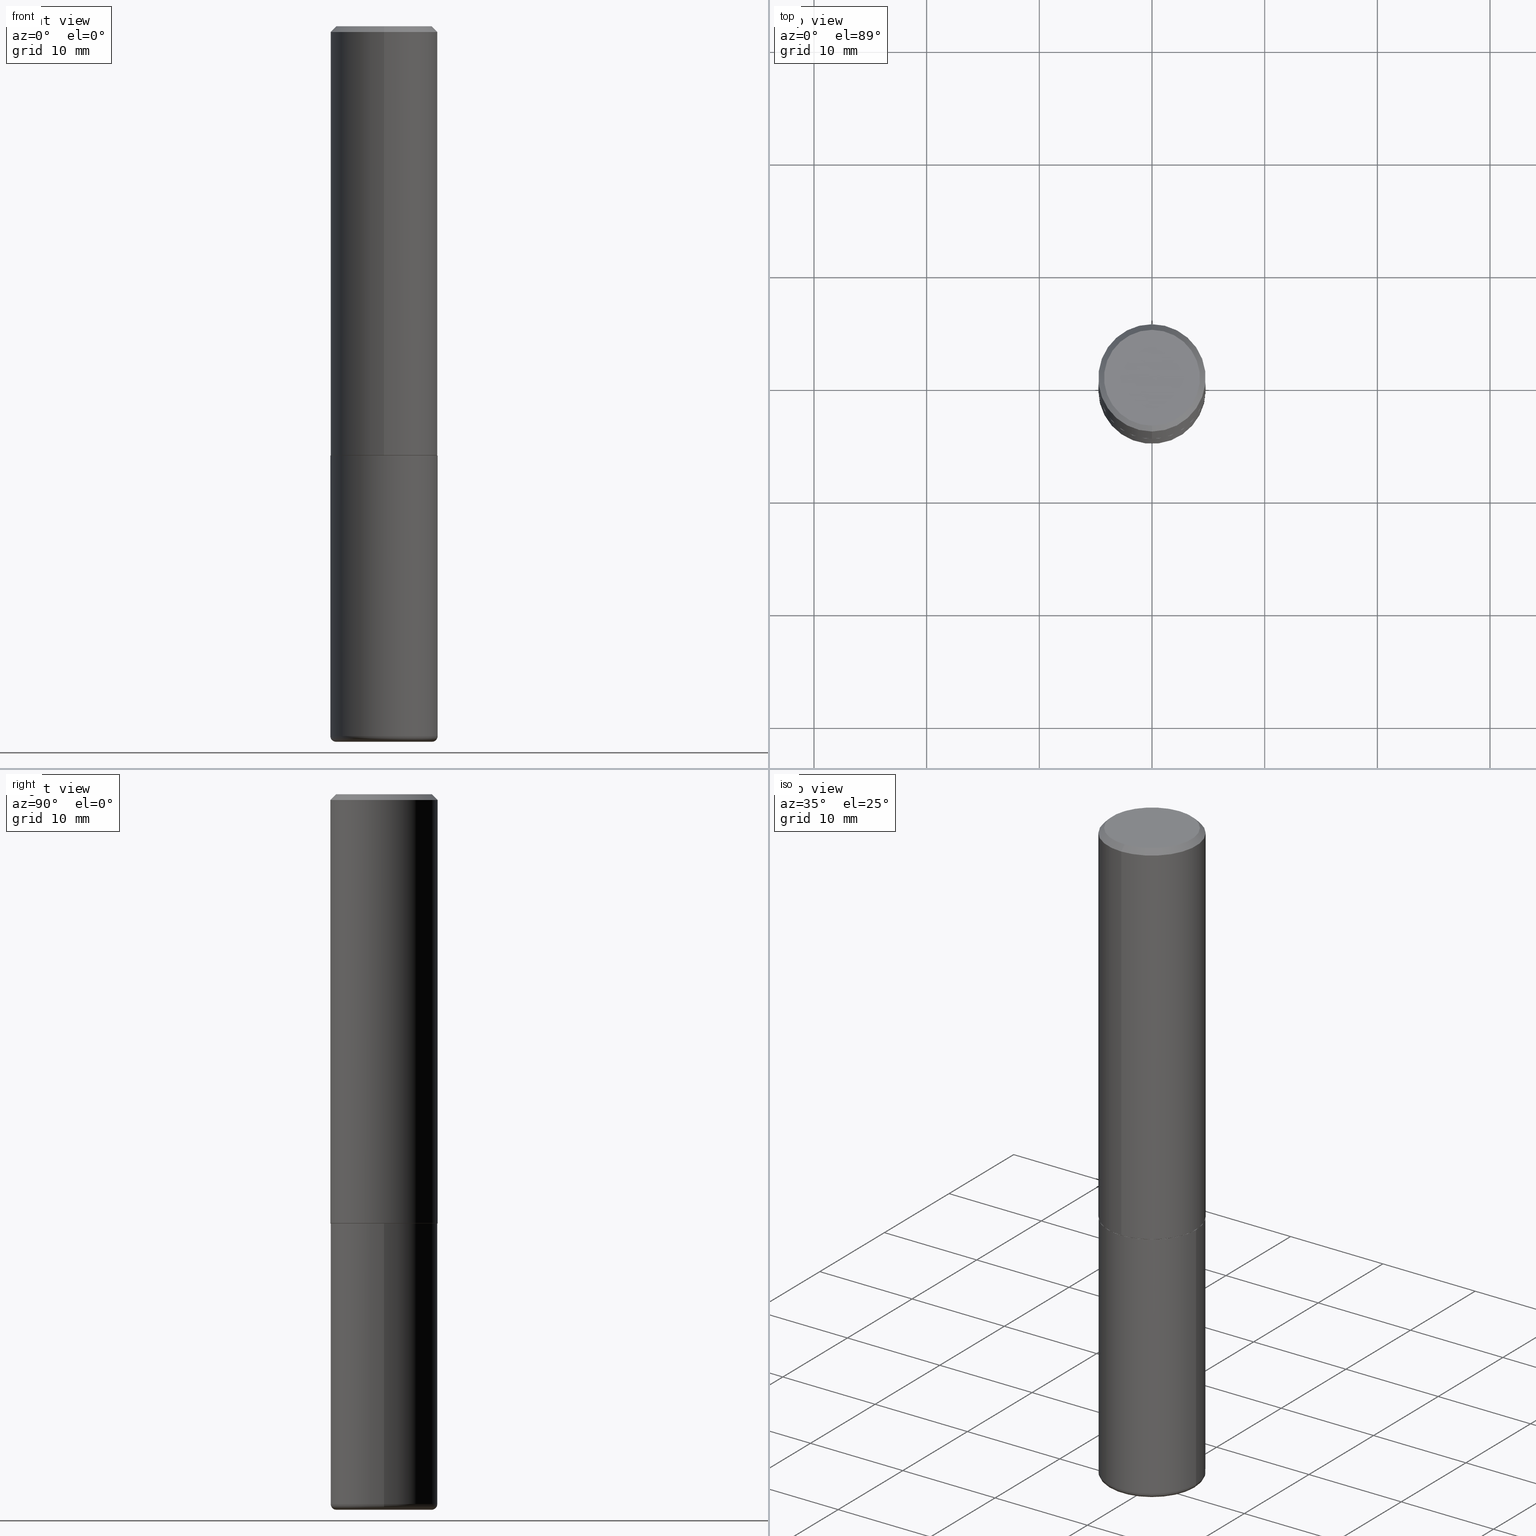
[diagram: canonical four-view strip — front | top / right | iso, engineering-drawing reading convention]
A machine part, canonical four-view strip (front | top / right | iso — engineering-drawing reading convention). The complete STEP part file that produces these views, byte-faithful:
ISO-10303-21;
HEADER;
FILE_DESCRIPTION (( 'STEP AP203' ),
    '1' );
FILE_NAME ('38248.STEP',
    '2024-03-02T19:32:34',
    ( '' ),
    ( '' ),
    'SwSTEP 2.0',
    'SolidWorks 2023',
    '' );
FILE_SCHEMA (( 'CONFIG_CONTROL_DESIGN' ));
ENDSEC;

DATA;
#1 = CALENDAR_DATE ( 2024, 2, 3 ) ;
#2 = EDGE_CURVE ( 'NONE', #370, #78, #31, .T. ) ;
#3 = AXIS2_PLACEMENT_3D ( 'NONE', #240, #142, #248 ) ;
#4 = CARTESIAN_POINT ( 'NONE',  ( 1.169646248512449595E-15, 0.1675000000000000100, -5.997178120976420969E-16 ) ) ;
#5 = ORIENTED_EDGE ( 'NONE', *, *, #358, .F. ) ;
#6 = DIRECTION ( 'NONE',  ( 1.000000000000000000, -6.982962677686261189E-15, 0.000000000000000000 ) ) ;
#7 = EDGE_LOOP ( 'NONE', ( #216, #330, #20, #310 ) ) ;
#8 = CARTESIAN_POINT ( 'NONE',  ( 0.000000000000000000, 0.000000000000000000, 0.000000000000000000 ) ) ;
#9 = ORGANIZATION ( 'UNSPECIFIED', 'UNSPECIFIED', '' ) ;
#10 = DIRECTION ( 'NONE',  ( 2.438088387897960049E-29, -3.491481338843145188E-15, -1.000000000000000000 ) ) ;
#11 = EDGE_CURVE ( 'NONE', #59, #312, #44, .T. ) ;
#12 = DIRECTION ( 'NONE',  ( 1.000000000000000000, -6.982962677686266711E-15, 4.883557194083113462E-29 ) ) ;
#13 = ORIENTED_EDGE ( 'NONE', *, *, #120, .T. ) ;
#14 = CIRCLE ( 'NONE', #3, 0.1875000000000000278 ) ;
#15 = CC_DESIGN_APPROVAL ( #391, ( #85 ) ) ;
#16 = LINE ( 'NONE', #54, #80 ) ;
#17 = DIRECTION ( 'NONE',  ( -6.982962677686265922E-15, -1.000000000000000000, 3.490942761243906817E-15 ) ) ;
#18 = DIRECTION ( 'NONE',  ( 1.000000000000000000, -6.982962677686275388E-15, 0.000000000000000000 ) ) ;
#19 = ADVANCED_FACE ( 'NONE', ( #157 ), #68, .T. ) ;
#20 = ORIENTED_EDGE ( 'NONE', *, *, #94, .T. ) ;
#21 = DIRECTION ( 'NONE',  ( -2.445468806185136597E-29, 3.491481338843145583E-15, 1.000000000000000000 ) ) ;
#22 = ORIENTED_EDGE ( 'NONE', *, *, #381, .T. ) ;
#23 = CIRCLE ( 'NONE', #237, 0.1875000000000001943 ) ;
#24 = PERSON_AND_ORGANIZATION ( #335, #9 ) ;
#25 = ORIENTED_EDGE ( 'NONE', *, *, #196, .F. ) ;
#26 = EDGE_CURVE ( 'NONE', #78, #372, #66, .T. ) ;
#27 = PERSON_AND_ORGANIZATION_ROLE ( 'design_owner' ) ;
#28 = CARTESIAN_POINT ( 'NONE',  ( 4.891689785825187560E-31, -6.981885522487828820E-17, -0.02000000000000004205 ) ) ;
#29 = PERSON_AND_ORGANIZATION ( #335, #9 ) ;
#30 = SECURITY_CLASSIFICATION_LEVEL ( 'unclassified' ) ;
#31 = CIRCLE ( 'NONE', #97, 0.1675000000000000100 ) ;
#32 = CARTESIAN_POINT ( 'NONE',  ( 3.666321494475970828E-29, -5.232923199104616895E-15, -1.499000000000000110 ) ) ;
#33 = AXIS2_PLACEMENT_3D ( 'NONE', #179, #172, #364 ) ;
#34 = DESIGN_CONTEXT ( 'detailed design', #123, 'design' ) ;
#35 = CARTESIAN_POINT ( 'NONE',  ( -1.309305502066139509E-15, -0.1875000000000054123, -1.498999999999999444 ) ) ;
#36 = CARTESIAN_POINT ( 'NONE',  ( -1.286343374582161379E-15, -0.1875000000000000555, -0.01999999999999938979 ) ) ;
#37 = CIRCLE ( 'NONE', #79, 0.1864999999999999714 ) ;
#38 = VERTEX_POINT ( 'NONE', #410 ) ;
#39 = AXIS2_PLACEMENT_3D ( 'NONE', #244, #340, #303 ) ;
#40 = LINE ( 'NONE', #394, #328 ) ;
#41 = ORIENTED_EDGE ( 'NONE', *, *, #214, .F. ) ;
#42 = DIRECTION ( 'NONE',  ( 4.937700262164540942E-15, 0.7071067811865441310, -0.7071067811865509034 ) ) ;
#43 = CARTESIAN_POINT ( 'NONE',  ( -0.1875000000000000278, 1.332267629550188046E-15, -9.223003294227947991E-30 ) ) ;
#44 = CIRCLE ( 'NONE', #416, 0.1675000000000000100 ) ;
#45 = CIRCLE ( 'NONE', #99, 0.02000000000000016348 ) ;
#46 = DIRECTION ( 'NONE',  ( 5.024295867787719235E-15, 0.7071067811865017205, 0.7071067811865933139 ) ) ;
#47 = ORIENTED_EDGE ( 'NONE', *, *, #120, .F. ) ;
#48 = DIRECTION ( 'NONE',  ( -1.000000000000000000, 6.982962677686265922E-15, -4.876176775795935793E-29 ) ) ;
#49 = ORIENTED_EDGE ( 'NONE', *, *, #206, .T. ) ;
#50 = CARTESIAN_POINT ( 'NONE',  ( 0.1875000000000001110, -9.968179222397176653E-15, -2.480000000000000426 ) ) ;
#51 = ORIENTED_EDGE ( 'NONE', *, *, #277, .T. ) ;
#52 = VECTOR ( 'NONE', #267, 39.37007874015748143 ) ;
#53 = EDGE_CURVE ( 'NONE', #151, #406, #23, .T. ) ;
#54 = CARTESIAN_POINT ( 'NONE',  ( -1.302322539388451720E-15, -0.1865000000000051894, -1.499999999999999778 ) ) ;
#55 = ORIENTED_EDGE ( 'NONE', *, *, #60, .T. ) ;
#56 = CARTESIAN_POINT ( 'NONE',  ( 6.064762639339139522E-29, -8.658873720331001644E-15, -2.480000000000000426 ) ) ;
#57 = ORIENTED_EDGE ( 'NONE', *, *, #11, .F. ) ;
#58 = DATE_TIME_ROLE ( 'creation_date' ) ;
#59 = VERTEX_POINT ( 'NONE', #194 ) ;
#60 = EDGE_CURVE ( 'NONE', #342, #38, #223, .T. ) ;
#61 = CLOSED_SHELL ( 'NONE', ( #412, #351, #306, #228, #366, #143 ) ) ;
#62 = CARTESIAN_POINT ( 'NONE',  ( 0.000000000000000000, 0.000000000000000000, 0.000000000000000000 ) ) ;
#63 = DIRECTION ( 'NONE',  ( -6.982962677686265922E-15, -1.000000000000000000, 2.913971193241877611E-15 ) ) ;
#64 = APPROVAL_STATUS ( 'not_yet_approved' ) ;
#65 = DIRECTION ( 'NONE',  ( -6.982962677686265922E-15, -1.000000000000000000, 2.929595703661408850E-15 ) ) ;
#66 = LINE ( 'NONE', #36, #254 ) ;
#67 = PERSON_AND_ORGANIZATION ( #335, #9 ) ;
#68 = CONICAL_SURFACE ( 'NONE', #198, 0.1874999999999999722, 0.7853981633974469467 ) ;
#69 = FACE_OUTER_BOUND ( 'NONE', #7, .T. ) ;
#70 = DIRECTION ( 'NONE',  ( -2.445844892912588876E-29, 3.490942761243906817E-15, 1.000000000000000000 ) ) ;
#71 = CARTESIAN_POINT ( 'NONE',  ( 3.668767339368883594E-29, -5.236414141865861409E-15, -1.500000000000000444 ) ) ;
#72 = ADVANCED_FACE ( 'NONE', ( #69 ), #166, .T. ) ;
#73 = CARTESIAN_POINT ( 'NONE',  ( 1.328714915871423829E-15, 0.1864999999999947533, -1.500000000000000888 ) ) ;
#74 = AXIS2_PLACEMENT_3D ( 'NONE', #28, #127, #257 ) ;
#75 = LOCAL_TIME ( 14, 32, 34.00000000000000000, #354 ) ;
#76 = PLANE ( 'NONE',  #359 ) ;
#77 = EDGE_CURVE ( 'NONE', #402, #239, #261, .T. ) ;
#78 = VERTEX_POINT ( 'NONE', #195 ) ;
#79 = AXIS2_PLACEMENT_3D ( 'NONE', #413, #355, #258 ) ;
#80 = VECTOR ( 'NONE', #215, 39.37007874015748143 ) ;
#81 = DIRECTION ( 'NONE',  ( -2.445468806185136597E-29, 3.491481338843145583E-15, 1.000000000000000000 ) ) ;
#82 = ORIENTED_EDGE ( 'NONE', *, *, #53, .T. ) ;
#83 = CARTESIAN_POINT ( 'NONE',  ( 0.1675000000000000100, -9.898349595620316510E-15, -2.500000000000000444 ) ) ;
#84 = ORIENTED_EDGE ( 'NONE', *, *, #77, .F. ) ;
#85 = PRODUCT_DEFINITION ( 'UNKNOWN', '', #231, #34 ) ;
#86 = DIRECTION ( 'NONE',  ( -1.000000000000000000, 7.105427357601014480E-15, 0.000000000000000000 ) ) ;
#87 = ORIENTED_EDGE ( 'NONE', *, *, #206, .F. ) ;
#88 = CC_DESIGN_DATE_AND_TIME_ASSIGNMENT ( #411, #58, ( #85 ) ) ;
#89 = CC_DESIGN_APPROVAL ( #383, ( #297 ) ) ;
#90 = DIRECTION ( 'NONE',  ( -2.445468806185136597E-29, 3.491481338843145583E-15, 1.000000000000000000 ) ) ;
#91 = ORIENTED_EDGE ( 'NONE', *, *, #77, .T. ) ;
#92 = DIRECTION ( 'NONE',  ( -6.982962677686266711E-15, -1.000000000000000000, 3.491481338843145583E-15 ) ) ;
#93 = EDGE_LOOP ( 'NONE', ( #82, #368, #408, #173 ) ) ;
#94 = EDGE_CURVE ( 'NONE', #372, #119, #246, .T. ) ;
#95 = CALENDAR_DATE ( 2024, 2, 3 ) ;
#96 = DIRECTION ( 'NONE',  ( -6.982962677686266711E-15, -1.000000000000000000, 3.490942761243906423E-15 ) ) ;
#97 = AXIS2_PLACEMENT_3D ( 'NONE', #243, #309, #17 ) ;
#98 = APPROVAL_ROLE ( '' ) ;
#99 = AXIS2_PLACEMENT_3D ( 'NONE', #336, #92, #18 ) ;
#100 = CARTESIAN_POINT ( 'NONE',  ( 0.1875000000000000278, -1.309305502066175008E-15, 9.142831454617381013E-30 ) ) ;
#101 = APPROVAL_STATUS ( 'not_yet_approved' ) ;
#102 = LINE ( 'NONE', #100, #283 ) ;
#103 = ORIENTED_EDGE ( 'NONE', *, *, #187, .T. ) ;
#104 = DIRECTION ( 'NONE',  ( 0.000000000000000000, 0.000000000000000000, 1.000000000000000000 ) ) ;
#105 = CARTESIAN_POINT ( 'NONE',  ( 6.064762639339139522E-29, -8.658873720331001644E-15, -2.480000000000000426 ) ) ;
#106 = ADVANCED_FACE ( 'NONE', ( #417 ), #290, .T. ) ;
#107 = DIRECTION ( 'NONE',  ( 6.982962677686265922E-15, 1.000000000000000000, -3.490942761243906423E-15 ) ) ;
#108 = DIMENSIONAL_EXPONENTS ( 1.000000000000000000, 0.000000000000000000, 0.000000000000000000, 0.000000000000000000, 0.000000000000000000, 0.000000000000000000, 0.000000000000000000 ) ;
#109 = EDGE_LOOP ( 'NONE', ( #41, #49, #103, #152 ) ) ;
#110 = CIRCLE ( 'NONE', #130, 0.1875000000000000278 ) ;
#111 = CYLINDRICAL_SURFACE ( 'NONE', #148, 0.1875000000000000278 ) ;
#112 = FACE_OUTER_BOUND ( 'NONE', #109, .T. ) ;
#113 = EDGE_LOOP ( 'NONE', ( #51, #126, #84, #5 ) ) ;
#114 = PRODUCT_RELATED_PRODUCT_CATEGORY ( 'detail', '', ( #338 ) ) ;
#115 = DIRECTION ( 'NONE',  ( -6.982962677686265922E-15, -1.000000000000000000, 3.490942761243906817E-15 ) ) ;
#116 = ORIENTED_EDGE ( 'NONE', *, *, #222, .T. ) ;
#117 = DIRECTION ( 'NONE',  ( -2.445844892912588876E-29, 3.490942761243906817E-15, 1.000000000000000000 ) ) ;
#118 = CC_DESIGN_PERSON_AND_ORGANIZATION_ASSIGNMENT ( #316, #27, ( #338 ) ) ;
#119 = VERTEX_POINT ( 'NONE', #387 ) ;
#120 = EDGE_CURVE ( 'NONE', #241, #282, #37, .T. ) ;
#121 = CARTESIAN_POINT ( 'NONE',  ( 4.891689785825187560E-31, -6.981885522487828820E-17, -0.02000000000000004205 ) ) ;
#122 = PLANE ( 'NONE',  #39 ) ;
#123 = APPLICATION_CONTEXT ( 'configuration controlled 3d designs of mechanical parts and assemblies' ) ;
#124 = AXIS2_PLACEMENT_3D ( 'NONE', #186, #287, #229 ) ;
#125 = CARTESIAN_POINT ( 'NONE',  ( 1.239475875289312499E-15, 0.1675000000000000100, -6.147027116869298551E-16 ) ) ;
#126 = ORIENTED_EDGE ( 'NONE', *, *, #388, .T. ) ;
#127 = DIRECTION ( 'NONE',  ( -2.445844892912588876E-29, 3.490942761243906817E-15, 1.000000000000000000 ) ) ;
#128 = APPROVAL_DATE_TIME ( #227, #301 ) ;
#129 = PLANE ( 'NONE',  #399 ) ;
#130 = AXIS2_PLACEMENT_3D ( 'NONE', #189, #318, #6 ) ;
#131 =( CONVERSION_BASED_UNIT ( 'INCH', #135 ) LENGTH_UNIT ( ) NAMED_UNIT ( #108 ) );
#132 = DIRECTION ( 'NONE',  ( 2.438088387897960049E-29, -3.491481338843145188E-15, -1.000000000000000000 ) ) ;
#133 = PERSON_AND_ORGANIZATION ( #335, #9 ) ;
#134 = DIRECTION ( 'NONE',  ( -2.445468806185136597E-29, 3.491481338843145583E-15, 1.000000000000000000 ) ) ;
#135 = LENGTH_MEASURE_WITH_UNIT ( LENGTH_MEASURE( 0.02539999999999999897 ), #403 );
#136 = AXIS2_PLACEMENT_3D ( 'NONE', #105, #134, #353 ) ;
#137 = LOCAL_TIME ( 14, 32, 34.00000000000000000, #156 ) ;
#138 = CARTESIAN_POINT ( 'NONE',  ( 6.113672015462842613E-29, -8.728703347107866520E-15, -2.500000000000000444 ) ) ;
#139 = ORIENTED_EDGE ( 'NONE', *, *, #298, .F. ) ;
#140 = DIRECTION ( 'NONE',  ( 2.445844892912588876E-29, -3.490942761243906423E-15, -1.000000000000000000 ) ) ;
#141 = CC_DESIGN_PERSON_AND_ORGANIZATION_ASSIGNMENT ( #165, #418, ( #297 ) ) ;
#142 = DIRECTION ( 'NONE',  ( -2.445468806185136597E-29, 3.491481338843145583E-15, 1.000000000000000000 ) ) ;
#143 = ADVANCED_FACE ( 'NONE', ( #379 ), #129, .T. ) ;
#144 = CARTESIAN_POINT ( 'NONE',  ( 3.666321494475970828E-29, -5.232923199104616895E-15, -1.499000000000000110 ) ) ;
#145 = PRODUCT_DEFINITION_SHAPE ( 'NONE', 'NONE',  #85 ) ;
#146 = ORIENTED_EDGE ( 'NONE', *, *, #320, .T. ) ;
#147 = AXIS2_PLACEMENT_3D ( 'NONE', #71, #197, #326 ) ;
#148 = AXIS2_PLACEMENT_3D ( 'NONE', #8, #168, #234 ) ;
#149 = AXIS2_PLACEMENT_3D ( 'NONE', #371, #117, #115 ) ;
#150 = ORIENTED_EDGE ( 'NONE', *, *, #26, .F. ) ;
#151 = VERTEX_POINT ( 'NONE', #35 ) ;
#152 = ORIENTED_EDGE ( 'NONE', *, *, #60, .F. ) ;
#153 = ADVANCED_FACE ( 'NONE', ( #251 ), #317, .T. ) ;
#154 = CIRCLE ( 'NONE', #204, 0.1875000000000001943 ) ;
#155 = TOROIDAL_SURFACE ( 'NONE', #262, 0.1675000000000000100, 0.02000000000000016348 ) ;
#156 = COORDINATED_UNIVERSAL_TIME_OFFSET ( 5, 0, .BEHIND. ) ;
#157 = FACE_OUTER_BOUND ( 'NONE', #209, .T. ) ;
#158 = PERSON_AND_ORGANIZATION_ROLE ( 'creator' ) ;
#159 = LINE ( 'NONE', #382, #296 ) ;
#160 = CALENDAR_DATE ( 2024, 2, 3 ) ;
#161 = EDGE_CURVE ( 'NONE', #151, #372, #159, .T. ) ;
#162 = DIRECTION ( 'NONE',  ( 1.000000000000000000, -6.982962677686266711E-15, 0.000000000000000000 ) ) ;
#163 = AXIS2_PLACEMENT_3D ( 'NONE', #361, #357, #232 ) ;
#164 = DIRECTION ( 'NONE',  ( -2.445468806185136597E-29, 3.491481338843145583E-15, 1.000000000000000000 ) ) ;
#165 = PERSON_AND_ORGANIZATION ( #335, #9 ) ;
#166 = CONICAL_SURFACE ( 'NONE', #378, 0.1874999999999999722, 0.7853981633974469467 ) ;
#167 = CC_DESIGN_SECURITY_CLASSIFICATION ( #297, ( #231 ) ) ;
#168 = DIRECTION ( 'NONE',  ( -2.445468806185136597E-29, 3.491481338843145583E-15, 1.000000000000000000 ) ) ;
#169 = EDGE_LOOP ( 'NONE', ( #302, #245, #346, #182 ) ) ;
#170 = DIRECTION ( 'NONE',  ( -2.445468806185136597E-29, 3.491481338843145583E-15, 1.000000000000000000 ) ) ;
#171 = CONICAL_SURFACE ( 'NONE', #147, 0.1864999999999999714, 0.7853981633973801113 ) ;
#172 = DIRECTION ( 'NONE',  ( -2.445844892912588876E-29, 3.490942761243906817E-15, 1.000000000000000000 ) ) ;
#173 = ORIENTED_EDGE ( 'NONE', *, *, #161, .F. ) ;
#174 = PLANE ( 'NONE',  #284 ) ;
#175 = ORIENTED_EDGE ( 'NONE', *, *, #381, .F. ) ;
#176 = FACE_OUTER_BOUND ( 'NONE', #395, .T. ) ;
#177 = EDGE_LOOP ( 'NONE', ( #47, #25 ) ) ;
#178 = AXIS2_PLACEMENT_3D ( 'NONE', #138, #170, #263 ) ;
#179 = CARTESIAN_POINT ( 'NONE',  ( 3.668767339368883594E-29, -5.236414141865861409E-15, -1.500000000000000444 ) ) ;
#180 = DIRECTION ( 'NONE',  ( 6.982962677686266711E-15, 1.000000000000000000, -3.483106191921935949E-15 ) ) ;
#181 = CARTESIAN_POINT ( 'NONE',  ( -1.286343374582161379E-15, -0.1875000000000000555, -0.01999999999999938979 ) ) ;
#182 = ORIENTED_EDGE ( 'NONE', *, *, #236, .F. ) ;
#183 = ORIENTED_EDGE ( 'NONE', *, *, #196, .T. ) ;
#184 = CC_DESIGN_PERSON_AND_ORGANIZATION_ASSIGNMENT ( #225, #220, ( #231 ) ) ;
#185 = VECTOR ( 'NONE', #396, 39.37007874015748143 ) ;
#186 = CARTESIAN_POINT ( 'NONE',  ( 0.000000000000000000, 0.000000000000000000, 0.000000000000000000 ) ) ;
#187 = EDGE_CURVE ( 'NONE', #402, #38, #102, .T. ) ;
#188 = APPROVAL_DATE_TIME ( #345, #391 ) ;
#189 = CARTESIAN_POINT ( 'NONE',  ( 6.064762639339139522E-29, -8.658873720331001644E-15, -2.480000000000000426 ) ) ;
#190 = COORDINATED_UNIVERSAL_TIME_OFFSET ( 5, 0, .BEHIND. ) ;
#191 = AXIS2_PLACEMENT_3D ( 'NONE', #260, #164, #162 ) ;
#192 = TOROIDAL_SURFACE ( 'NONE', #275, 0.1675000000000000100, 0.02000000000000016348 ) ;
#193 = CALENDAR_DATE ( 2024, 2, 3 ) ;
#194 = CARTESIAN_POINT ( 'NONE',  ( -0.1675000000000000100, -7.432575177745255527E-15, -2.500000000000000444 ) ) ;
#195 = CARTESIAN_POINT ( 'NONE',  ( -1.217738394604446442E-15, -0.1675000000000000100, 5.547631133297791179E-16 ) ) ;
#196 = EDGE_CURVE ( 'NONE', #282, #241, #274, .T. ) ;
#197 = DIRECTION ( 'NONE',  ( -2.445844892912588876E-29, 3.490942761243906817E-15, 1.000000000000000000 ) ) ;
#198 = AXIS2_PLACEMENT_3D ( 'NONE', #121, #374, #180 ) ;
#199 = APPROVAL_PERSON_ORGANIZATION ( #29, #301, #377 ) ;
#200 = FACE_OUTER_BOUND ( 'NONE', #334, .T. ) ;
#201 = APPROVAL_PERSON_ORGANIZATION ( #67, #391, #98 ) ;
#202 = EDGE_LOOP ( 'NONE', ( #280, #314 ) ) ;
#203 = ORIENTED_EDGE ( 'NONE', *, *, #358, .T. ) ;
#204 = AXIS2_PLACEMENT_3D ( 'NONE', #144, #333, #281 ) ;
#205 = EDGE_LOOP ( 'NONE', ( #337, #55 ) ) ;
#206 = EDGE_CURVE ( 'NONE', #239, #402, #110, .T. ) ;
#207 = CARTESIAN_POINT ( 'NONE',  ( 1.325162202192623128E-15, 0.1864999999999947533, -1.500000000000000888 ) ) ;
#208 = MANIFOLD_SOLID_BREP ( 'Body-Move/Copy2[2]', #348 ) ;
#209 = EDGE_LOOP ( 'NONE', ( #150, #300, #116, #398 ) ) ;
#210 = CC_DESIGN_PERSON_AND_ORGANIZATION_ASSIGNMENT ( #24, #319, ( #231 ) ) ;
#211 = FACE_OUTER_BOUND ( 'NONE', #205, .T. ) ;
#212 = ORIENTED_EDGE ( 'NONE', *, *, #214, .T. ) ;
#213 = VECTOR ( 'NONE', #46, 39.37007874015748143 ) ;
#214 = EDGE_CURVE ( 'NONE', #239, #342, #392, .T. ) ;
#215 = DIRECTION ( 'NONE',  ( -4.937700262164211199E-15, -0.7071067811864968355, 0.7071067811865981989 ) ) ;
#216 = ORIENTED_EDGE ( 'NONE', *, *, #401, .F. ) ;
#217 = CARTESIAN_POINT ( 'NONE',  ( 3.668203209277704895E-29, -5.237222008264718177E-15, -1.500000000000000222 ) ) ;
#218 = CC_DESIGN_PERSON_AND_ORGANIZATION_ASSIGNMENT ( #133, #158, ( #85 ) ) ;
#219 = ORIENTED_EDGE ( 'NONE', *, *, #53, .F. ) ;
#220 = PERSON_AND_ORGANIZATION_ROLE ( 'creator' ) ;
#221 = CARTESIAN_POINT ( 'NONE',  ( 3.668767339368883594E-29, -5.236414141865861409E-15, -1.500000000000000444 ) ) ;
#222 = EDGE_CURVE ( 'NONE', #370, #119, #40, .T. ) ;
#223 = CIRCLE ( 'NONE', #191, 0.1875000000000000278 ) ;
#224 = DIRECTION ( 'NONE',  ( -2.445468806185136877E-29, 3.491481338843145188E-15, 1.000000000000000000 ) ) ;
#225 = PERSON_AND_ORGANIZATION ( #335, #9 ) ;
#226 = DIRECTION ( 'NONE',  ( -4.851104656540957175E-15, -0.7071067811865490160, -0.7071067811865460184 ) ) ;
#227 = DATE_AND_TIME ( #95, #75 ) ;
#228 = ADVANCED_FACE ( 'NONE', ( #112 ), #111, .T. ) ;
#229 = DIRECTION ( 'NONE',  ( -6.982962677686266711E-15, -1.000000000000000000, 3.490942761243906423E-15 ) ) ;
#230 = AXIS2_PLACEMENT_3D ( 'NONE', #221, #350, #65 ) ;
#231 = PRODUCT_DEFINITION_FORMATION_WITH_SPECIFIED_SOURCE ( 'ANY', '', #338, .NOT_KNOWN. ) ;
#232 = DIRECTION ( 'NONE',  ( -6.982962677686266711E-15, -1.000000000000000000, 3.483106191921935949E-15 ) ) ;
#233 = APPLICATION_CONTEXT ( 'configuration controlled 3d designs of mechanical parts and assemblies' ) ;
#234 = DIRECTION ( 'NONE',  ( 1.000000000000000000, -6.982962677686265922E-15, 4.876176775795935793E-29 ) ) ;
#235 = CARTESIAN_POINT ( 'NONE',  ( 1.332267629550206781E-15, 0.1874999999999949485, -1.499000000000000554 ) ) ;
#236 = EDGE_CURVE ( 'NONE', #119, #372, #339, .T. ) ;
#237 = AXIS2_PLACEMENT_3D ( 'NONE', #32, #70, #63 ) ;
#238 = CIRCLE ( 'NONE', #149, 0.1675000000000000100 ) ;
#239 = VERTEX_POINT ( 'NONE', #265 ) ;
#240 = CARTESIAN_POINT ( 'NONE',  ( 3.668203209277704895E-29, -5.237222008264718177E-15, -1.500000000000000222 ) ) ;
#241 = VERTEX_POINT ( 'NONE', #389 ) ;
#242 = FACE_OUTER_BOUND ( 'NONE', #276, .T. ) ;
#243 = CARTESIAN_POINT ( 'NONE',  ( 7.330148026253442751E-46, -1.046228534983812136E-31, -2.996979917857535013E-17 ) ) ;
#244 = CARTESIAN_POINT ( 'NONE',  ( 3.668767339368883594E-29, -5.236414141865861409E-15, -1.500000000000000444 ) ) ;
#245 = ORIENTED_EDGE ( 'NONE', *, *, #288, .T. ) ;
#246 = CIRCLE ( 'NONE', #74, 0.1874999999999999722 ) ;
#247 = LOCAL_TIME ( 14, 32, 34.00000000000000000, #352 ) ;
#248 = DIRECTION ( 'NONE',  ( 1.000000000000000000, -6.982962677686266711E-15, 0.000000000000000000 ) ) ;
#249 = DIRECTION ( 'NONE',  ( -2.445468806185136597E-29, 3.491481338843145583E-15, 1.000000000000000000 ) ) ;
#250 = APPROVAL_DATE_TIME ( #409, #383 ) ;
#251 = FACE_OUTER_BOUND ( 'NONE', #169, .T. ) ;
#252 = UNCERTAINTY_MEASURE_WITH_UNIT (LENGTH_MEASURE( 1.000000000000000082E-05 ), #131, 'distance_accuracy_value', 'NONE');
#253 = DIRECTION ( 'NONE',  ( -2.445844892912589156E-29, 3.490942761243906423E-15, 1.000000000000000000 ) ) ;
#254 = VECTOR ( 'NONE', #226, 39.37007874015748143 ) ;
#255 =( GEOMETRIC_REPRESENTATION_CONTEXT ( 3 ) GLOBAL_UNCERTAINTY_ASSIGNED_CONTEXT ( ( #252 ) ) GLOBAL_UNIT_ASSIGNED_CONTEXT ( ( #131, #259, #375 ) ) REPRESENTATION_CONTEXT ( 'NONE', 'WORKASPACE' ) );
#256 = APPLICATION_PROTOCOL_DEFINITION ( 'international standard', 'config_control_design', 1994, #123 ) ;
#257 = DIRECTION ( 'NONE',  ( -6.982962677686266711E-15, -1.000000000000000000, 3.483106191921935949E-15 ) ) ;
#258 = DIRECTION ( 'NONE',  ( -6.982962677686265922E-15, -1.000000000000000000, 2.929595703661408850E-15 ) ) ;
#259 =( NAMED_UNIT ( * ) PLANE_ANGLE_UNIT ( ) SI_UNIT ( $, .RADIAN. ) );
#260 = CARTESIAN_POINT ( 'NONE',  ( 3.668203209277704895E-29, -5.237222008264718177E-15, -1.500000000000000222 ) ) ;
#261 = CIRCLE ( 'NONE', #136, 0.1875000000000000278 ) ;
#262 = AXIS2_PLACEMENT_3D ( 'NONE', #270, #90, #12 ) ;
#263 = DIRECTION ( 'NONE',  ( 1.000000000000000000, -6.982962677686271444E-15, 0.000000000000000000 ) ) ;
#264 = ADVANCED_FACE ( 'NONE', ( #362 ), #171, .T. ) ;
#265 = CARTESIAN_POINT ( 'NONE',  ( -0.1875000000000001110, -7.326606090780813796E-15, -2.480000000000000426 ) ) ;
#266 = AXIS2_PLACEMENT_3D ( 'NONE', #369, #400, #86 ) ;
#267 = DIRECTION ( 'NONE',  ( -2.445468806185136877E-29, 3.491481338843145188E-15, 1.000000000000000000 ) ) ;
#268 = ORIENTED_EDGE ( 'NONE', *, *, #277, .F. ) ;
#269 = ADVANCED_FACE ( 'NONE', ( #299 ), #76, .F. ) ;
#270 = CARTESIAN_POINT ( 'NONE',  ( 6.064762639339139522E-29, -8.658873720331001644E-15, -2.480000000000000426 ) ) ;
#271 = ORIENTED_EDGE ( 'NONE', *, *, #288, .F. ) ;
#272 = CC_DESIGN_DATE_AND_TIME_ASSIGNMENT ( #286, #349, ( #297 ) ) ;
#273 = DIRECTION ( 'NONE',  ( 1.000000000000000000, -6.982962677686266711E-15, 4.883557194083113462E-29 ) ) ;
#274 = CIRCLE ( 'NONE', #230, 0.1864999999999999714 ) ;
#275 = AXIS2_PLACEMENT_3D ( 'NONE', #56, #81, #273 ) ;
#276 = EDGE_LOOP ( 'NONE', ( #331, #344, #203, #87 ) ) ;
#277 = EDGE_CURVE ( 'NONE', #312, #59, #321, .T. ) ;
#278 = CARTESIAN_POINT ( 'NONE',  ( 6.113672015462842613E-29, -8.728703347107866520E-15, -2.500000000000000444 ) ) ;
#279 = FACE_OUTER_BOUND ( 'NONE', #113, .T. ) ;
#280 = ORIENTED_EDGE ( 'NONE', *, *, #2, .T. ) ;
#281 = DIRECTION ( 'NONE',  ( -6.982962677686265922E-15, -1.000000000000000000, 2.913971193241877611E-15 ) ) ;
#282 = VERTEX_POINT ( 'NONE', #73 ) ;
#283 = VECTOR ( 'NONE', #224, 39.37007874015748143 ) ;
#284 = AXIS2_PLACEMENT_3D ( 'NONE', #217, #10, #48 ) ;
#285 = ADVANCED_FACE ( 'NONE', ( #200 ), #322, .T. ) ;
#286 = DATE_AND_TIME ( #193, #137 ) ;
#287 = DIRECTION ( 'NONE',  ( -2.445844892912588876E-29, 3.490942761243906817E-15, 1.000000000000000000 ) ) ;
#288 = EDGE_CURVE ( 'NONE', #406, #151, #154, .T. ) ;
#289 = CALENDAR_DATE ( 2024, 2, 3 ) ;
#290 = CYLINDRICAL_SURFACE ( 'NONE', #124, 0.1875000000000000833 ) ;
#291 = APPROVAL_ROLE ( '' ) ;
#292 = DIRECTION ( 'NONE',  ( 2.445844892912588876E-29, -3.490942761243906817E-15, -1.000000000000000000 ) ) ;
#293 = AXIS2_PLACEMENT_3D ( 'NONE', #62, #104, #313 ) ;
#294 = DIRECTION ( 'NONE',  ( 6.982962677686266711E-15, 1.000000000000000000, -3.483106191921935949E-15 ) ) ;
#295 = COORDINATED_UNIVERSAL_TIME_OFFSET ( 5, 0, .BEHIND. ) ;
#296 = VECTOR ( 'NONE', #253, 39.37007874015748143 ) ;
#297 = SECURITY_CLASSIFICATION ( '', '', #30 ) ;
#298 = EDGE_CURVE ( 'NONE', #38, #342, #14, .T. ) ;
#299 = FACE_OUTER_BOUND ( 'NONE', #202, .T. ) ;
#300 = ORIENTED_EDGE ( 'NONE', *, *, #2, .F. ) ;
#301 = APPROVAL ( #384, 'UNSPECIFIED' ) ;
#302 = ORIENTED_EDGE ( 'NONE', *, *, #315, .F. ) ;
#303 = DIRECTION ( 'NONE',  ( -6.982962677686265922E-15, -1.000000000000000000, 3.490942761243906423E-15 ) ) ;
#304 = CARTESIAN_POINT ( 'NONE',  ( -0.1875000000000000278, -5.615780234747672457E-15, -1.500000000000000222 ) ) ;
#305 = EDGE_LOOP ( 'NONE', ( #175, #183, #146, #271 ) ) ;
#306 = ADVANCED_FACE ( 'NONE', ( #211 ), #174, .F. ) ;
#307 = DIRECTION ( 'NONE',  ( 1.000000000000000000, -6.982962677686265922E-15, 4.876176775795935793E-29 ) ) ;
#308 = CC_DESIGN_APPROVAL ( #301, ( #231 ) ) ;
#309 = DIRECTION ( 'NONE',  ( -2.445844892912588876E-29, 3.490942761243906817E-15, 1.000000000000000000 ) ) ;
#310 = ORIENTED_EDGE ( 'NONE', *, *, #222, .F. ) ;
#311 = CARTESIAN_POINT ( 'NONE',  ( 0.000000000000000000, 0.000000000000000000, 0.000000000000000000 ) ) ;
#312 = VERTEX_POINT ( 'NONE', #83 ) ;
#313 = DIRECTION ( 'NONE',  ( 1.000000000000000000, 0.000000000000000000, 0.000000000000000000 ) ) ;
#314 = ORIENTED_EDGE ( 'NONE', *, *, #401, .T. ) ;
#315 = EDGE_CURVE ( 'NONE', #406, #119, #407, .T. ) ;
#316 = PERSON_AND_ORGANIZATION ( #335, #9 ) ;
#317 = CYLINDRICAL_SURFACE ( 'NONE', #332, 0.1875000000000000833 ) ;
#318 = DIRECTION ( 'NONE',  ( -2.445468806185136597E-29, 3.491481338843145583E-15, 1.000000000000000000 ) ) ;
#319 = PERSON_AND_ORGANIZATION_ROLE ( 'design_supplier' ) ;
#320 = EDGE_CURVE ( 'NONE', #241, #151, #16, .T. ) ;
#321 = CIRCLE ( 'NONE', #178, 0.1675000000000000100 ) ;
#322 = CONICAL_SURFACE ( 'NONE', #33, 0.1864999999999999714, 0.7853981633973801113 ) ;
#323 = PERSON_AND_ORGANIZATION ( #335, #9 ) ;
#324 = DIRECTION ( 'NONE',  ( -1.000000000000000000, 6.982962677686265922E-15, -4.876176775795935793E-29 ) ) ;
#325 = CARTESIAN_POINT ( 'NONE',  ( 4.891689785825187560E-31, -6.981885522487828820E-17, -0.02000000000000004205 ) ) ;
#326 = DIRECTION ( 'NONE',  ( -6.982962677686265922E-15, -1.000000000000000000, 2.929595703661408850E-15 ) ) ;
#327 = EDGE_LOOP ( 'NONE', ( #268, #57 ) ) ;
#328 = VECTOR ( 'NONE', #42, 39.37007874015748143 ) ;
#329 = CIRCLE ( 'NONE', #266, 0.02000000000000016348 ) ;
#330 = ORIENTED_EDGE ( 'NONE', *, *, #26, .T. ) ;
#331 = ORIENTED_EDGE ( 'NONE', *, *, #388, .F. ) ;
#332 = AXIS2_PLACEMENT_3D ( 'NONE', #376, #347, #96 ) ;
#333 = DIRECTION ( 'NONE',  ( -2.445844892912588876E-29, 3.490942761243906817E-15, 1.000000000000000000 ) ) ;
#334 = EDGE_LOOP ( 'NONE', ( #13, #22, #219, #390 ) ) ;
#335 = PERSON ( 'UNSPECIFIED', 'UNSPECIFIED', 'UNSPECIFIED', ('UNSPECIFIED'), ('UNSPECIFIED'), ('UNSPECIFIED') ) ;
#336 = CARTESIAN_POINT ( 'NONE',  ( 0.1675000000000000100, -9.828519968843451634E-15, -2.480000000000000426 ) ) ;
#337 = ORIENTED_EDGE ( 'NONE', *, *, #298, .T. ) ;
#338 = PRODUCT ( '38248', '38248', '', ( #386 ) ) ;
#339 = CIRCLE ( 'NONE', #163, 0.1874999999999999722 ) ;
#340 = DIRECTION ( 'NONE',  ( -2.445844892912588876E-29, 3.490942761243906423E-15, 1.000000000000000000 ) ) ;
#341 = LOCAL_TIME ( 14, 32, 34.00000000000000000, #190 ) ;
#342 = VERTEX_POINT ( 'NONE', #304 ) ;
#343 = CYLINDRICAL_SURFACE ( 'NONE', #380, 0.1875000000000000278 ) ;
#344 = ORIENTED_EDGE ( 'NONE', *, *, #11, .T. ) ;
#345 = DATE_AND_TIME ( #289, #341 ) ;
#346 = ORIENTED_EDGE ( 'NONE', *, *, #161, .T. ) ;
#347 = DIRECTION ( 'NONE',  ( -2.445844892912588876E-29, 3.490942761243906817E-15, 1.000000000000000000 ) ) ;
#348 = CLOSED_SHELL ( 'NONE', ( #285, #106, #72, #19, #153, #264, #397, #269 ) ) ;
#349 = DATE_TIME_ROLE ( 'classification_date' ) ;
#350 = DIRECTION ( 'NONE',  ( -2.445844892912588876E-29, 3.490942761243906817E-15, 1.000000000000000000 ) ) ;
#351 = ADVANCED_FACE ( 'NONE', ( #279 ), #192, .T. ) ;
#352 = COORDINATED_UNIVERSAL_TIME_OFFSET ( 5, 0, .BEHIND. ) ;
#353 = DIRECTION ( 'NONE',  ( 1.000000000000000000, -6.982962677686261189E-15, 0.000000000000000000 ) ) ;
#354 = COORDINATED_UNIVERSAL_TIME_OFFSET ( 5, 0, .BEHIND. ) ;
#355 = DIRECTION ( 'NONE',  ( -2.445844892912588876E-29, 3.490942761243906817E-15, 1.000000000000000000 ) ) ;
#356 = MANIFOLD_SOLID_BREP ( 'Body-Move/Copy2[1]', #61 ) ;
#357 = DIRECTION ( 'NONE',  ( -2.445844892912588876E-29, 3.490942761243906817E-15, 1.000000000000000000 ) ) ;
#358 = EDGE_CURVE ( 'NONE', #312, #402, #45, .T. ) ;
#359 = AXIS2_PLACEMENT_3D ( 'NONE', #4, #140, #107 ) ;
#360 = LOCAL_TIME ( 14, 32, 34.00000000000000000, #295 ) ;
#361 = CARTESIAN_POINT ( 'NONE',  ( 4.891689785825187560E-31, -6.981885522487828820E-17, -0.02000000000000004205 ) ) ;
#362 = FACE_OUTER_BOUND ( 'NONE', #305, .T. ) ;
#363 = APPROVAL_PERSON_ORGANIZATION ( #323, #383, #291 ) ;
#364 = DIRECTION ( 'NONE',  ( -6.982962677686265922E-15, -1.000000000000000000, 2.929595703661408850E-15 ) ) ;
#365 = ORIENTED_EDGE ( 'NONE', *, *, #187, .F. ) ;
#366 = ADVANCED_FACE ( 'NONE', ( #242 ), #155, .T. ) ;
#367 = FACE_OUTER_BOUND ( 'NONE', #177, .T. ) ;
#368 = ORIENTED_EDGE ( 'NONE', *, *, #315, .T. ) ;
#369 = CARTESIAN_POINT ( 'NONE',  ( -0.1675000000000000100, -7.468714637932833959E-15, -2.480000000000000426 ) ) ;
#370 = VERTEX_POINT ( 'NONE', #125 ) ;
#371 = CARTESIAN_POINT ( 'NONE',  ( 7.330148026253442751E-46, -1.046228534983812136E-31, -2.996979917857535013E-17 ) ) ;
#372 = VERTEX_POINT ( 'NONE', #181 ) ;
#373 = CARTESIAN_POINT ( 'NONE',  ( 1.332267629550188243E-15, 0.1875000000000000833, -6.545517677332327747E-16 ) ) ;
#374 = DIRECTION ( 'NONE',  ( 2.445844892912588876E-29, -3.490942761243906817E-15, -1.000000000000000000 ) ) ;
#375 =( NAMED_UNIT ( * ) SI_UNIT ( $, .STERADIAN. ) SOLID_ANGLE_UNIT ( ) );
#376 = CARTESIAN_POINT ( 'NONE',  ( 0.000000000000000000, 0.000000000000000000, 0.000000000000000000 ) ) ;
#377 = APPROVAL_ROLE ( '' ) ;
#378 = AXIS2_PLACEMENT_3D ( 'NONE', #325, #292, #294 ) ;
#379 = FACE_OUTER_BOUND ( 'NONE', #327, .T. ) ;
#380 = AXIS2_PLACEMENT_3D ( 'NONE', #311, #21, #307 ) ;
#381 = EDGE_CURVE ( 'NONE', #282, #406, #405, .T. ) ;
#382 = CARTESIAN_POINT ( 'NONE',  ( -1.309305502066175600E-15, -0.1875000000000000833, 6.545517677332327747E-16 ) ) ;
#383 = APPROVAL ( #64, 'UNSPECIFIED' ) ;
#384 = APPROVAL_STATUS ( 'not_yet_approved' ) ;
#385 = CARTESIAN_POINT ( 'NONE',  ( 4.192264689345838731E-30, -1.688347347744895238E-14, -2.500000000000000000 ) ) ;
#386 = MECHANICAL_CONTEXT ( 'NONE', #233, 'mechanical' ) ;
#387 = CARTESIAN_POINT ( 'NONE',  ( 1.309305502066175205E-15, 0.1874999999999999167, -0.02000000000000069431 ) ) ;
#388 = EDGE_CURVE ( 'NONE', #59, #239, #329, .T. ) ;
#389 = CARTESIAN_POINT ( 'NONE',  ( -1.302322539388451720E-15, -0.1865000000000051894, -1.499999999999999778 ) ) ;
#390 = ORIENTED_EDGE ( 'NONE', *, *, #320, .F. ) ;
#391 = APPROVAL ( #101, 'UNSPECIFIED' ) ;
#392 = LINE ( 'NONE', #43, #52 ) ;
#393 = SHAPE_DEFINITION_REPRESENTATION ( #145, #414 ) ;
#394 = CARTESIAN_POINT ( 'NONE',  ( 1.309305502066175205E-15, 0.1874999999999999167, -0.02000000000000069431 ) ) ;
#395 = EDGE_LOOP ( 'NONE', ( #91, #212, #139, #365 ) ) ;
#396 = DIRECTION ( 'NONE',  ( -2.445844892912589156E-29, 3.490942761243906423E-15, 1.000000000000000000 ) ) ;
#397 = ADVANCED_FACE ( 'NONE', ( #367 ), #122, .F. ) ;
#398 = ORIENTED_EDGE ( 'NONE', *, *, #236, .T. ) ;
#399 = AXIS2_PLACEMENT_3D ( 'NONE', #385, #132, #324 ) ;
#400 = DIRECTION ( 'NONE',  ( 7.105427357601001859E-15, 1.000000000000000000, -3.491481338843145583E-15 ) ) ;
#401 = EDGE_CURVE ( 'NONE', #78, #370, #238, .T. ) ;
#402 = VERTEX_POINT ( 'NONE', #50 ) ;
#403 =( LENGTH_UNIT ( ) NAMED_UNIT ( * ) SI_UNIT ( $, .METRE. ) );
#404 = DIRECTION ( 'NONE',  ( 1.000000000000000000, -6.982962677686271444E-15, 0.000000000000000000 ) ) ;
#405 = LINE ( 'NONE', #207, #213 ) ;
#406 = VERTEX_POINT ( 'NONE', #235 ) ;
#407 = LINE ( 'NONE', #373, #185 ) ;
#408 = ORIENTED_EDGE ( 'NONE', *, *, #94, .F. ) ;
#409 = DATE_AND_TIME ( #1, #360 ) ;
#410 = CARTESIAN_POINT ( 'NONE',  ( 0.1875000000000000278, -6.546527510330893974E-15, -1.500000000000000222 ) ) ;
#411 = DATE_AND_TIME ( #160, #247 ) ;
#412 = ADVANCED_FACE ( 'NONE', ( #176 ), #343, .T. ) ;
#413 = CARTESIAN_POINT ( 'NONE',  ( 3.668767339368883594E-29, -5.236414141865861409E-15, -1.500000000000000444 ) ) ;
#414 = ADVANCED_BREP_SHAPE_REPRESENTATION ( '38248', ( #356, #208, #293 ), #255 ) ;
#415 = APPLICATION_PROTOCOL_DEFINITION ( 'international standard', 'config_control_design', 1994, #233 ) ;
#416 = AXIS2_PLACEMENT_3D ( 'NONE', #278, #249, #404 ) ;
#417 = FACE_OUTER_BOUND ( 'NONE', #93, .T. ) ;
#418 = PERSON_AND_ORGANIZATION_ROLE ( 'classification_officer' ) ;
ENDSEC;
END-ISO-10303-21;
